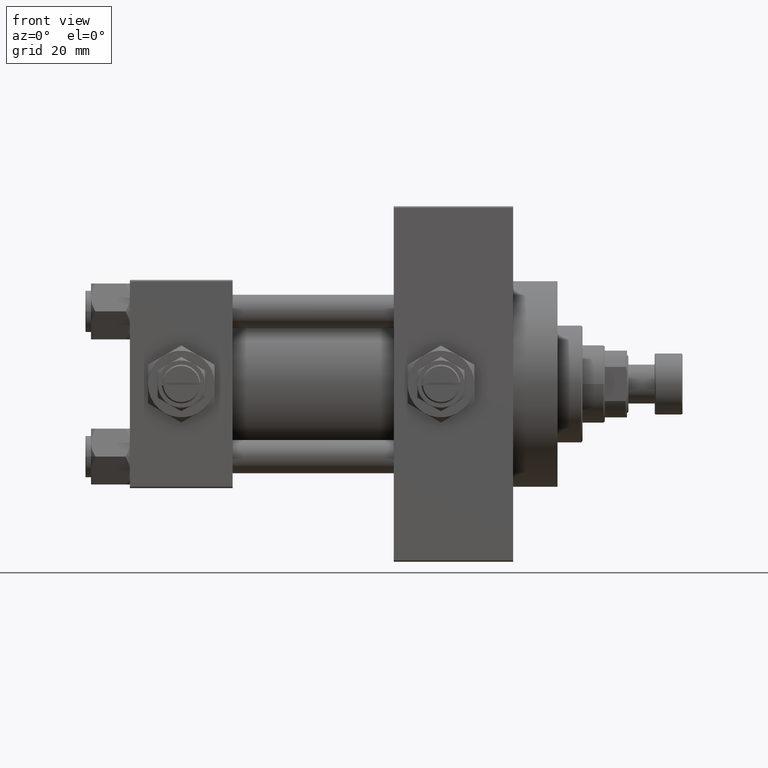
[diagram: clean part render]
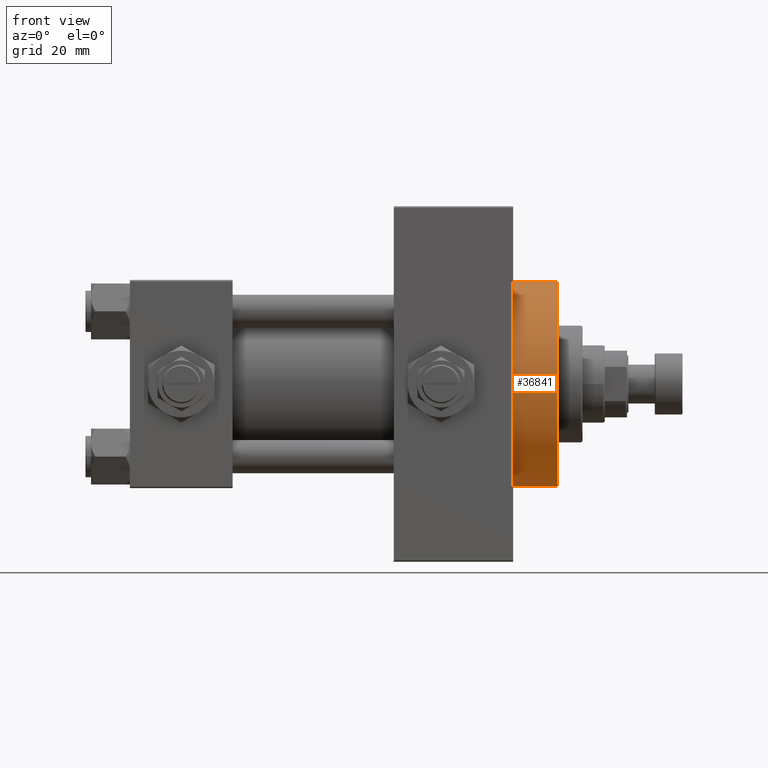
[diagram: same view with one face highlighted and labeled with its STEP entity id]
A machine part, front view. The second image highlights one B-rep face of the part: STEP entity #36841.
In plain terms, the highlighted cylindrical surface (partial cylindrical patch) has radius 37 mm, axis along (-1, -0, -0).
Its self-contained STEP definition (entity closure, byte-faithful):
#1176 = CARTESIAN_POINT ( 'NONE',  ( 138.0000000000000000, 0.000000000000000000, 0.000000000000000000 ) ) ;
#1452 = CARTESIAN_POINT ( 'NONE',  ( 154.0000000000000284, 0.000000000000000000, 0.000000000000000000 ) ) ;
#4716 = DIRECTION ( 'NONE',  ( -1.000000000000000000, -0.000000000000000000, -0.000000000000000000 ) ) ;
#5206 = VERTEX_POINT ( 'NONE', #44620 ) ;
#6086 = CIRCLE ( 'NONE', #18992, 37.00000000000000000 ) ;
#6929 = VECTOR ( 'NONE', #19131, 1000.000000000000000 ) ;
#6994 = CARTESIAN_POINT ( 'NONE',  ( 138.0000000000000000, 4.531193156845206793E-15, -37.00000000000000000 ) ) ;
#7030 = DIRECTION ( 'NONE',  ( 0.000000000000000000, 0.000000000000000000, -1.000000000000000000 ) ) ;
#7518 = LINE ( 'NONE', #38337, #6929 ) ;
#8227 = AXIS2_PLACEMENT_3D ( 'NONE', #1452, #16818, #43865 ) ;
#9965 = ORIENTED_EDGE ( 'NONE', *, *, #20818, .F. ) ;
#10089 = VECTOR ( 'NONE', #4716, 1000.000000000000000 ) ;
#10426 = ORIENTED_EDGE ( 'NONE', *, *, #18853, .T. ) ;
#10547 = CARTESIAN_POINT ( 'NONE',  ( 154.0000000000000284, 0.000000000000000000, 0.000000000000000000 ) ) ;
#16537 = DIRECTION ( 'NONE',  ( 1.000000000000000000, 0.000000000000000000, 0.000000000000000000 ) ) ;
#16680 = CIRCLE ( 'NONE', #44830, 37.00000000000000000 ) ;
#16818 = DIRECTION ( 'NONE',  ( -1.000000000000000000, -0.000000000000000000, -0.000000000000000000 ) ) ;
#18853 = EDGE_CURVE ( 'NONE', #33673, #5206, #27933, .T. ) ;
#18992 = AXIS2_PLACEMENT_3D ( 'NONE', #10547, #41374, #7030 ) ;
#19131 = DIRECTION ( 'NONE',  ( -1.000000000000000000, -0.000000000000000000, -0.000000000000000000 ) ) ;
#20650 = EDGE_CURVE ( 'NONE', #33673, #33051, #6086, .T. ) ;
#20818 = EDGE_CURVE ( 'NONE', #33051, #27402, #7518, .T. ) ;
#27402 = VERTEX_POINT ( 'NONE', #6994 ) ;
#27933 = LINE ( 'NONE', #35513, #10089 ) ;
#29899 = CARTESIAN_POINT ( 'NONE',  ( 154.0000000000000284, 0.000000000000000000, 37.00000000000000000 ) ) ;
#31966 = DIRECTION ( 'NONE',  ( 0.000000000000000000, 0.000000000000000000, -1.000000000000000000 ) ) ;
#32494 = CYLINDRICAL_SURFACE ( 'NONE', #8227, 37.00000000000000000 ) ;
#33051 = VERTEX_POINT ( 'NONE', #47295 ) ;
#33659 = ORIENTED_EDGE ( 'NONE', *, *, #20650, .F. ) ;
#33673 = VERTEX_POINT ( 'NONE', #29899 ) ;
#35513 = CARTESIAN_POINT ( 'NONE',  ( 154.0000000000000284, 0.000000000000000000, 37.00000000000000000 ) ) ;
#36035 = FACE_OUTER_BOUND ( 'NONE', #46818, .T. ) ;
#36841 = ADVANCED_FACE ( 'NONE', ( #36035 ), #32494, .T. ) ;
#38337 = CARTESIAN_POINT ( 'NONE',  ( 154.0000000000000284, 4.531193156845206793E-15, -37.00000000000000000 ) ) ;
#41374 = DIRECTION ( 'NONE',  ( 1.000000000000000000, 0.000000000000000000, 0.000000000000000000 ) ) ;
#43767 = ORIENTED_EDGE ( 'NONE', *, *, #48105, .T. ) ;
#43865 = DIRECTION ( 'NONE',  ( 0.000000000000000000, 0.000000000000000000, 1.000000000000000000 ) ) ;
#44620 = CARTESIAN_POINT ( 'NONE',  ( 138.0000000000000000, 0.000000000000000000, 37.00000000000000000 ) ) ;
#44830 = AXIS2_PLACEMENT_3D ( 'NONE', #1176, #16537, #31966 ) ;
#46818 = EDGE_LOOP ( 'NONE', ( #9965, #33659, #10426, #43767 ) ) ;
#47295 = CARTESIAN_POINT ( 'NONE',  ( 154.0000000000000284, 4.531193156845206793E-15, -37.00000000000000000 ) ) ;
#48105 = EDGE_CURVE ( 'NONE', #5206, #27402, #16680, .T. ) ;